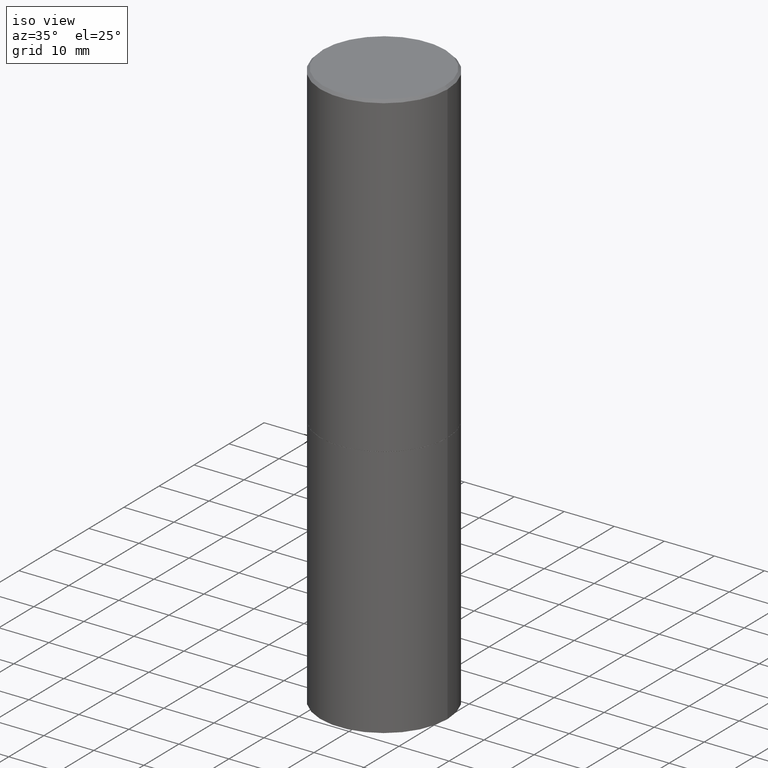
[diagram: clean part render]
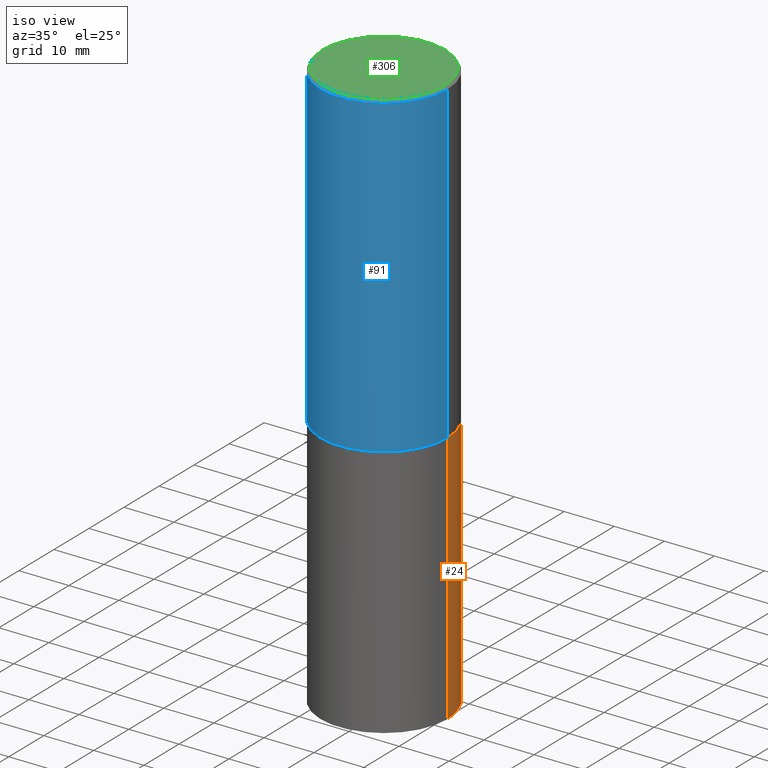
[diagram: same view with three faces highlighted in distinct colors, each labeled with its STEP entity id]
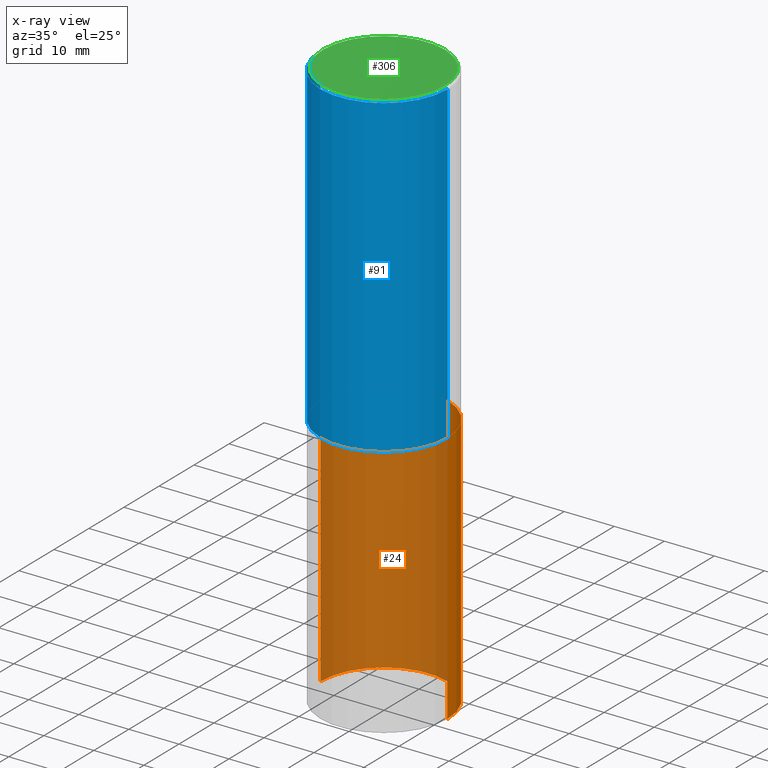
[diagram: x-ray of the same camera — body ghosted, the three highlighted faces saturated]
A machine part, iso view with three faces highlighted in distinct colors.
The next image is the same camera in x-ray (body ghosted, the three faces saturated) — at least one of them is partly hidden behind the body in this view.
Their STEP definitions:

[orange] entity #24 — the highlighted cylindrical surface (partial cylindrical patch) has radius 12.7 mm, axis along (-0, 0, 1).
#16 = VERTEX_POINT ( 'NONE', #142 ) ;
#21 = EDGE_CURVE ( 'NONE', #16, #52, #97, .T. ) ;
#24 = ADVANCED_FACE ( 'NONE', ( #335 ), #307, .T. ) ;
#48 = EDGE_CURVE ( 'NONE', #238, #52, #148, .T. ) ;
#49 = LINE ( 'NONE', #228, #154 ) ;
#52 = VERTEX_POINT ( 'NONE', #244 ) ;
#59 = VECTOR ( 'NONE', #174, 39.37007874015748143 ) ;
#72 = CARTESIAN_POINT ( 'NONE',  ( 6.113672015462842613E-29, -8.728703347107864943E-15, -2.500000000000000000 ) ) ;
#92 = AXIS2_PLACEMENT_3D ( 'NONE', #340, #316, #278 ) ;
#97 = CIRCLE ( 'NONE', #333, 0.5000000000000000000 ) ;
#119 = ORIENTED_EDGE ( 'NONE', *, *, #155, .F. ) ;
#128 = DIRECTION ( 'NONE',  ( -2.445468806185136597E-29, 3.491481338843145583E-15, 1.000000000000000000 ) ) ;
#130 = ORIENTED_EDGE ( 'NONE', *, *, #285, .T. ) ;
#132 = AXIS2_PLACEMENT_3D ( 'NONE', #139, #286, #259 ) ;
#134 = EDGE_LOOP ( 'NONE', ( #130, #304, #198, #119 ) ) ;
#139 = CARTESIAN_POINT ( 'NONE',  ( 1.100460962783311469E-28, -1.571166602479415690E-14, -4.500000000000000000 ) ) ;
#142 = CARTESIAN_POINT ( 'NONE',  ( 0.5000000000000000000, -1.222018468595099830E-14, -2.500000000000000000 ) ) ;
#148 = LINE ( 'NONE', #216, #59 ) ;
#150 = CARTESIAN_POINT ( 'NONE',  ( -0.5000000000000000000, -8.667471007150509990E-15, -4.500000000000000000 ) ) ;
#154 = VECTOR ( 'NONE', #321, 39.37007874015748143 ) ;
#155 = EDGE_CURVE ( 'NONE', #210, #16, #49, .T. ) ;
#171 = DIRECTION ( 'NONE',  ( 1.000000000000000000, -6.982962677686269077E-15, 0.000000000000000000 ) ) ;
#174 = DIRECTION ( 'NONE',  ( -2.445468806185136877E-29, 3.491481338843145188E-15, 1.000000000000000000 ) ) ;
#198 = ORIENTED_EDGE ( 'NONE', *, *, #21, .F. ) ;
#210 = VERTEX_POINT ( 'NONE', #246 ) ;
#212 = CIRCLE ( 'NONE', #132, 0.5000000000000000000 ) ;
#216 = CARTESIAN_POINT ( 'NONE',  ( -0.5000000000000000000, 3.552713678800500929E-15, -2.459467545127452891E-29 ) ) ;
#228 = CARTESIAN_POINT ( 'NONE',  ( 0.5000000000000000000, -3.491481338843133355E-15, 2.438088387897967896E-29 ) ) ;
#238 = VERTEX_POINT ( 'NONE', #150 ) ;
#244 = CARTESIAN_POINT ( 'NONE',  ( -0.5000000000000000000, -8.667471007150509990E-15, -2.500000000000000000 ) ) ;
#246 = CARTESIAN_POINT ( 'NONE',  ( 0.5000000000000000000, -1.920314736363729025E-14, -4.500000000000000000 ) ) ;
#259 = DIRECTION ( 'NONE',  ( 1.000000000000000000, -6.982962677686266711E-15, 0.000000000000000000 ) ) ;
#278 = DIRECTION ( 'NONE',  ( 1.000000000000000000, -6.982962677686266711E-15, 4.876176775795935793E-29 ) ) ;
#285 = EDGE_CURVE ( 'NONE', #210, #238, #212, .T. ) ;
#286 = DIRECTION ( 'NONE',  ( -2.445468806185136597E-29, 3.491481338843145583E-15, 1.000000000000000000 ) ) ;
#304 = ORIENTED_EDGE ( 'NONE', *, *, #48, .T. ) ;
#307 = CYLINDRICAL_SURFACE ( 'NONE', #92, 0.5000000000000000000 ) ;
#316 = DIRECTION ( 'NONE',  ( -2.445468806185136597E-29, 3.491481338843145583E-15, 1.000000000000000000 ) ) ;
#321 = DIRECTION ( 'NONE',  ( -2.445468806185136877E-29, 3.491481338843145188E-15, 1.000000000000000000 ) ) ;
#333 = AXIS2_PLACEMENT_3D ( 'NONE', #72, #128, #171 ) ;
#335 = FACE_OUTER_BOUND ( 'NONE', #134, .T. ) ;
#340 = CARTESIAN_POINT ( 'NONE',  ( 0.000000000000000000, 0.000000000000000000, 0.000000000000000000 ) ) ;

[blue] entity #91 — the highlighted cylindrical surface (partial cylindrical patch) has radius 12.7 mm, axis along (-0, 0, 1).
#2 = LINE ( 'NONE', #251, #241 ) ;
#17 = DIRECTION ( 'NONE',  ( 1.000000000000000000, -6.982962677686266711E-15, 0.000000000000000000 ) ) ;
#20 = FACE_OUTER_BOUND ( 'NONE', #144, .T. ) ;
#32 = DIRECTION ( 'NONE',  ( -2.445468806185136597E-29, 3.491481338843145583E-15, 1.000000000000000000 ) ) ;
#38 = AXIS2_PLACEMENT_3D ( 'NONE', #75, #315, #152 ) ;
#42 = DIRECTION ( 'NONE',  ( -2.445468806185136597E-29, 3.491481338843145583E-15, 1.000000000000000000 ) ) ;
#45 = AXIS2_PLACEMENT_3D ( 'NONE', #324, #32, #89 ) ;
#66 = VERTEX_POINT ( 'NONE', #269 ) ;
#67 = CARTESIAN_POINT ( 'NONE',  ( -0.5000000000000000000, -8.448070674724411945E-16, -2.499000000000000110 ) ) ;
#75 = CARTESIAN_POINT ( 'NONE',  ( 0.000000000000000000, 0.000000000000000000, 0.000000000000000000 ) ) ;
#77 = CARTESIAN_POINT ( 'NONE',  ( 0.5000000000000000000, -1.221669320461215371E-14, -2.499000000000000110 ) ) ;
#89 = DIRECTION ( 'NONE',  ( 1.000000000000000000, -6.982962677686265133E-15, 0.000000000000000000 ) ) ;
#91 = ADVANCED_FACE ( 'NONE', ( #20 ), #129, .T. ) ;
#93 = VERTEX_POINT ( 'NONE', #77 ) ;
#100 = EDGE_CURVE ( 'NONE', #364, #66, #102, .T. ) ;
#102 = CIRCLE ( 'NONE', #361, 0.4999999999999996669 ) ;
#104 = LINE ( 'NONE', #182, #193 ) ;
#120 = CIRCLE ( 'NONE', #45, 0.5000000000000000000 ) ;
#125 = EDGE_CURVE ( 'NONE', #93, #66, #2, .T. ) ;
#129 = CYLINDRICAL_SURFACE ( 'NONE', #38, 0.4999999999999998335 ) ;
#143 = ORIENTED_EDGE ( 'NONE', *, *, #100, .F. ) ;
#144 = EDGE_LOOP ( 'NONE', ( #147, #226, #293, #143 ) ) ;
#147 = ORIENTED_EDGE ( 'NONE', *, *, #255, .F. ) ;
#152 = DIRECTION ( 'NONE',  ( 1.000000000000000000, -6.982962677686267499E-15, 4.876176775795936353E-29 ) ) ;
#182 = CARTESIAN_POINT ( 'NONE',  ( -0.4999999999999998335, 3.552713678800499746E-15, -2.459467545127452330E-29 ) ) ;
#185 = DIRECTION ( 'NONE',  ( -2.445468806185136877E-29, 3.491481338843145188E-15, 1.000000000000000000 ) ) ;
#193 = VECTOR ( 'NONE', #185, 39.37007874015748143 ) ;
#194 = DIRECTION ( 'NONE',  ( -2.445468806185136877E-29, 3.491481338843145188E-15, 1.000000000000000000 ) ) ;
#195 = VERTEX_POINT ( 'NONE', #67 ) ;
#211 = CARTESIAN_POINT ( 'NONE',  ( 4.890937612370295054E-31, -6.982962677686322424E-17, -0.02000000000000009062 ) ) ;
#226 = ORIENTED_EDGE ( 'NONE', *, *, #343, .T. ) ;
#241 = VECTOR ( 'NONE', #194, 39.37007874015748143 ) ;
#251 = CARTESIAN_POINT ( 'NONE',  ( 0.4999999999999998335, -3.491481338843132566E-15, 2.438088387897967336E-29 ) ) ;
#255 = EDGE_CURVE ( 'NONE', #195, #364, #104, .T. ) ;
#269 = CARTESIAN_POINT ( 'NONE',  ( 0.4999999999999996669, -3.500078625662626713E-15, -0.02000000000000009062 ) ) ;
#293 = ORIENTED_EDGE ( 'NONE', *, *, #125, .T. ) ;
#315 = DIRECTION ( 'NONE',  ( -2.445468806185136597E-29, 3.491481338843145583E-15, 1.000000000000000000 ) ) ;
#324 = CARTESIAN_POINT ( 'NONE',  ( 6.111226546656657010E-29, -8.725211865769021935E-15, -2.499000000000000110 ) ) ;
#343 = EDGE_CURVE ( 'NONE', #195, #93, #120, .T. ) ;
#361 = AXIS2_PLACEMENT_3D ( 'NONE', #211, #42, #17 ) ;
#364 = VERTEX_POINT ( 'NONE', #365 ) ;
#365 = CARTESIAN_POINT ( 'NONE',  ( -0.4999999999999996669, 3.421651712066267691E-15, -0.02000000000000009062 ) ) ;

[green] entity #306 — the highlighted planar face has unit normal (0, -0, -1).
#5 = PLANE ( 'NONE',  #203 ) ;
#7 = CARTESIAN_POINT ( 'NONE',  ( 3.351822085289404787E-15, 0.4799999999999995937, -1.669508273909557867E-15 ) ) ;
#12 = ORIENTED_EDGE ( 'NONE', *, *, #96, .T. ) ;
#15 = CARTESIAN_POINT ( 'NONE',  ( -3.131554243005659264E-46, 4.471029511141341874E-32, 1.280553747030123384E-17 ) ) ;
#35 = VERTEX_POINT ( 'NONE', #47 ) ;
#47 = CARTESIAN_POINT ( 'NONE',  ( -0.4799999999999995937, 3.386736898677836436E-15, 1.280553747027767124E-17 ) ) ;
#55 = FACE_OUTER_BOUND ( 'NONE', #366, .T. ) ;
#95 = DIRECTION ( 'NONE',  ( 1.000000000000000000, -6.982962677686266711E-15, 4.876036955247133327E-29 ) ) ;
#96 = EDGE_CURVE ( 'NONE', #164, #35, #180, .T. ) ;
#115 = DIRECTION ( 'NONE',  ( 2.438088387897960049E-29, -3.491481338843145188E-15, -1.000000000000000000 ) ) ;
#126 = DIRECTION ( 'NONE',  ( -2.445468806185136597E-29, 3.491481338843145583E-15, 1.000000000000000000 ) ) ;
#145 = CARTESIAN_POINT ( 'NONE',  ( -3.131554243005659264E-46, 4.471029511141341874E-32, 1.280553747030123384E-17 ) ) ;
#157 = DIRECTION ( 'NONE',  ( -1.000000000000000000, 6.982962677686265922E-15, -4.876176775795935793E-29 ) ) ;
#164 = VERTEX_POINT ( 'NONE', #329 ) ;
#180 = CIRCLE ( 'NONE', #222, 0.4799999999999995937 ) ;
#183 = EDGE_CURVE ( 'NONE', #35, #164, #256, .T. ) ;
#203 = AXIS2_PLACEMENT_3D ( 'NONE', #7, #115, #157 ) ;
#217 = ORIENTED_EDGE ( 'NONE', *, *, #183, .T. ) ;
#222 = AXIS2_PLACEMENT_3D ( 'NONE', #15, #126, #95 ) ;
#230 = DIRECTION ( 'NONE',  ( 1.000000000000000000, -6.982962677686266711E-15, 4.876036955247133327E-29 ) ) ;
#237 = DIRECTION ( 'NONE',  ( -2.445468806185136597E-29, 3.491481338843145583E-15, 1.000000000000000000 ) ) ;
#256 = CIRCLE ( 'NONE', #346, 0.4799999999999995937 ) ;
#306 = ADVANCED_FACE ( 'NONE', ( #55 ), #5, .F. ) ;
#329 = CARTESIAN_POINT ( 'NONE',  ( 0.4799999999999995937, -3.396558832296479732E-15, 1.280553747032483033E-17 ) ) ;
#346 = AXIS2_PLACEMENT_3D ( 'NONE', #145, #237, #230 ) ;
#366 = EDGE_LOOP ( 'NONE', ( #217, #12 ) ) ;